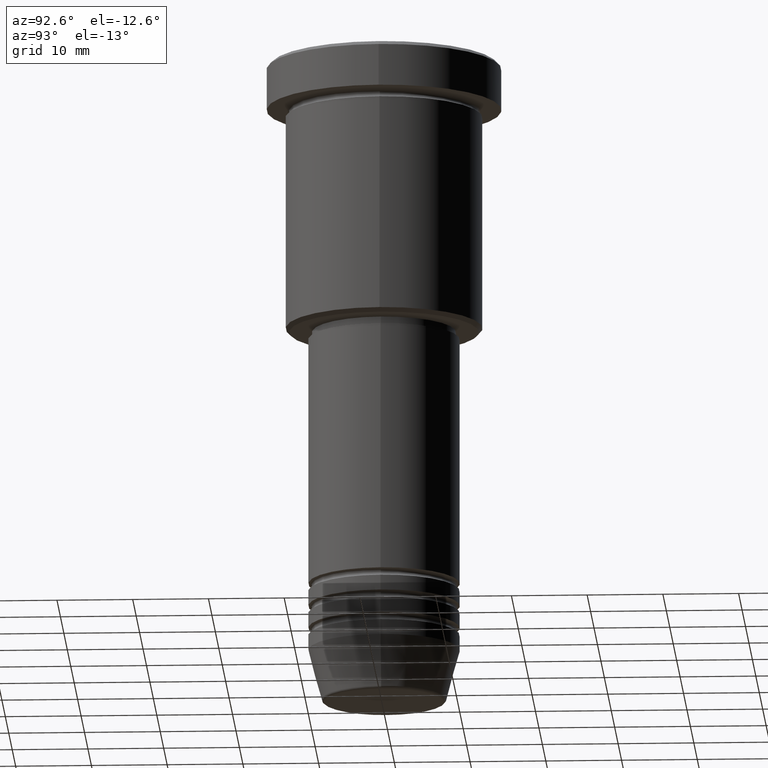
[diagram: clean part render]
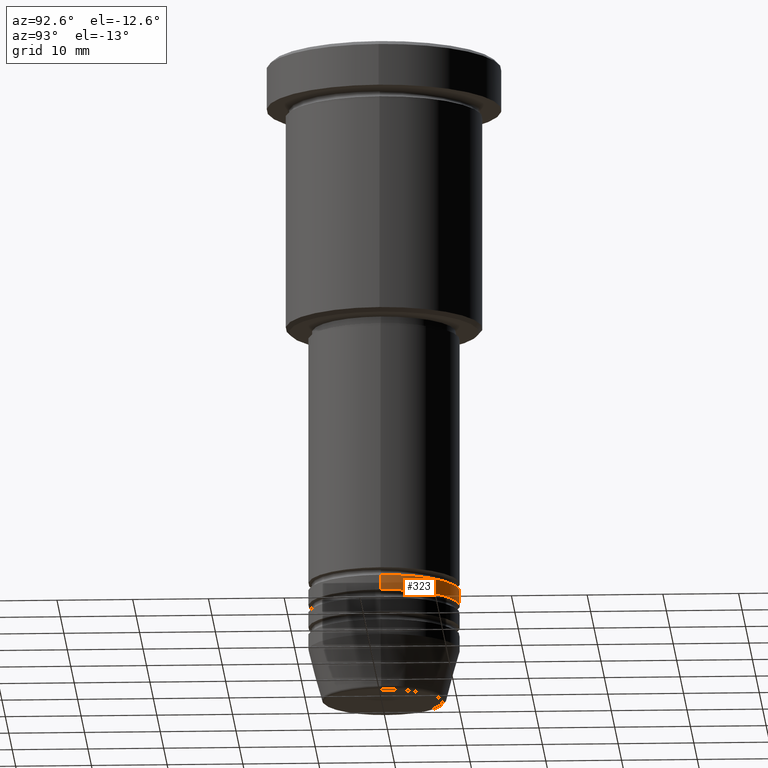
[diagram: same view with one face highlighted and labeled with its STEP entity id]
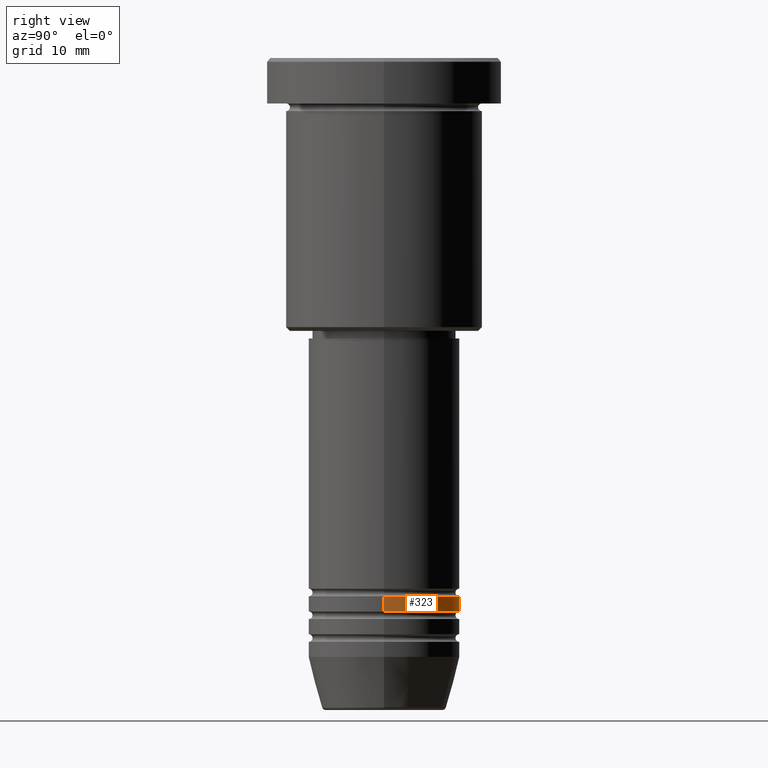
[diagram: same view with one face highlighted and labeled with its STEP entity id]
A machine part, auxiliary view. The second image highlights one B-rep face of the part: STEP entity #323.
A second angle (right view) of the same face is appended — the face is thin or edge-on in the first view.
In plain terms, the highlighted cylindrical surface (partial cylindrical patch) has radius 10 mm, axis along (-0, -0, 1).
Its self-contained STEP definition (entity closure, byte-faithful):
#39 = CARTESIAN_POINT ( 'NONE',  ( 10.00000000000000000, 0.000000000000000000, -70.99999999999998579 ) ) ;
#92 = ORIENTED_EDGE ( 'NONE', *, *, #950, .F. ) ;
#101 = DIRECTION ( 'NONE',  ( -0.000000000000000000, -0.000000000000000000, 1.000000000000000000 ) ) ;
#138 = CARTESIAN_POINT ( 'NONE',  ( 0.000000000000000000, 0.000000000000000000, -72.99999999999998579 ) ) ;
#143 = CYLINDRICAL_SURFACE ( 'NONE', #352, 10.00000000000000000 ) ;
#206 = ORIENTED_EDGE ( 'NONE', *, *, #833, .T. ) ;
#210 = EDGE_LOOP ( 'NONE', ( #206, #843, #813, #92 ) ) ;
#230 = VERTEX_POINT ( 'NONE', #39 ) ;
#242 = FACE_OUTER_BOUND ( 'NONE', #210, .T. ) ;
#272 = CARTESIAN_POINT ( 'NONE',  ( -10.00000000000000000, 1.224646799147353256E-15, -70.99999999999998579 ) ) ;
#273 = EDGE_CURVE ( 'NONE', #230, #525, #1134, .T. ) ;
#285 = CARTESIAN_POINT ( 'NONE',  ( 10.00000000000000000, 0.000000000000000000, -72.99999999999998579 ) ) ;
#323 = ADVANCED_FACE ( 'NONE', ( #242 ), #143, .T. ) ;
#333 = DIRECTION ( 'NONE',  ( 1.000000000000000000, 0.000000000000000000, 0.000000000000000000 ) ) ;
#345 = LINE ( 'NONE', #805, #1177 ) ;
#352 = AXIS2_PLACEMENT_3D ( 'NONE', #503, #510, #333 ) ;
#378 = EDGE_CURVE ( 'NONE', #820, #525, #784, .T. ) ;
#462 = DIRECTION ( 'NONE',  ( 1.000000000000000000, 0.000000000000000000, 0.000000000000000000 ) ) ;
#503 = CARTESIAN_POINT ( 'NONE',  ( 0.000000000000000000, 0.000000000000000000, 0.000000000000000000 ) ) ;
#510 = DIRECTION ( 'NONE',  ( -0.000000000000000000, -0.000000000000000000, 1.000000000000000000 ) ) ;
#525 = VERTEX_POINT ( 'NONE', #272 ) ;
#597 = DIRECTION ( 'NONE',  ( 1.000000000000000000, 0.000000000000000000, 0.000000000000000000 ) ) ;
#619 = AXIS2_PLACEMENT_3D ( 'NONE', #930, #101, #462 ) ;
#649 = CIRCLE ( 'NONE', #1091, 10.00000000000000000 ) ;
#716 = VECTOR ( 'NONE', #1150, 1000.000000000000000 ) ;
#784 = LINE ( 'NONE', #1066, #716 ) ;
#805 = CARTESIAN_POINT ( 'NONE',  ( 10.00000000000000000, 0.000000000000000000, 0.000000000000000000 ) ) ;
#813 = ORIENTED_EDGE ( 'NONE', *, *, #273, .F. ) ;
#820 = VERTEX_POINT ( 'NONE', #875 ) ;
#833 = EDGE_CURVE ( 'NONE', #1136, #820, #649, .T. ) ;
#843 = ORIENTED_EDGE ( 'NONE', *, *, #378, .T. ) ;
#875 = CARTESIAN_POINT ( 'NONE',  ( -10.00000000000000000, 1.224646799147353256E-15, -72.99999999999998579 ) ) ;
#930 = CARTESIAN_POINT ( 'NONE',  ( 0.000000000000000000, 0.000000000000000000, -70.99999999999998579 ) ) ;
#950 = EDGE_CURVE ( 'NONE', #1136, #230, #345, .T. ) ;
#965 = DIRECTION ( 'NONE',  ( -0.000000000000000000, -0.000000000000000000, 1.000000000000000000 ) ) ;
#986 = DIRECTION ( 'NONE',  ( -0.000000000000000000, -0.000000000000000000, 1.000000000000000000 ) ) ;
#1066 = CARTESIAN_POINT ( 'NONE',  ( -10.00000000000000000, 1.224646799147353256E-15, 0.000000000000000000 ) ) ;
#1091 = AXIS2_PLACEMENT_3D ( 'NONE', #138, #965, #597 ) ;
#1134 = CIRCLE ( 'NONE', #619, 10.00000000000000000 ) ;
#1136 = VERTEX_POINT ( 'NONE', #285 ) ;
#1150 = DIRECTION ( 'NONE',  ( -0.000000000000000000, -0.000000000000000000, 1.000000000000000000 ) ) ;
#1177 = VECTOR ( 'NONE', #986, 1000.000000000000000 ) ;